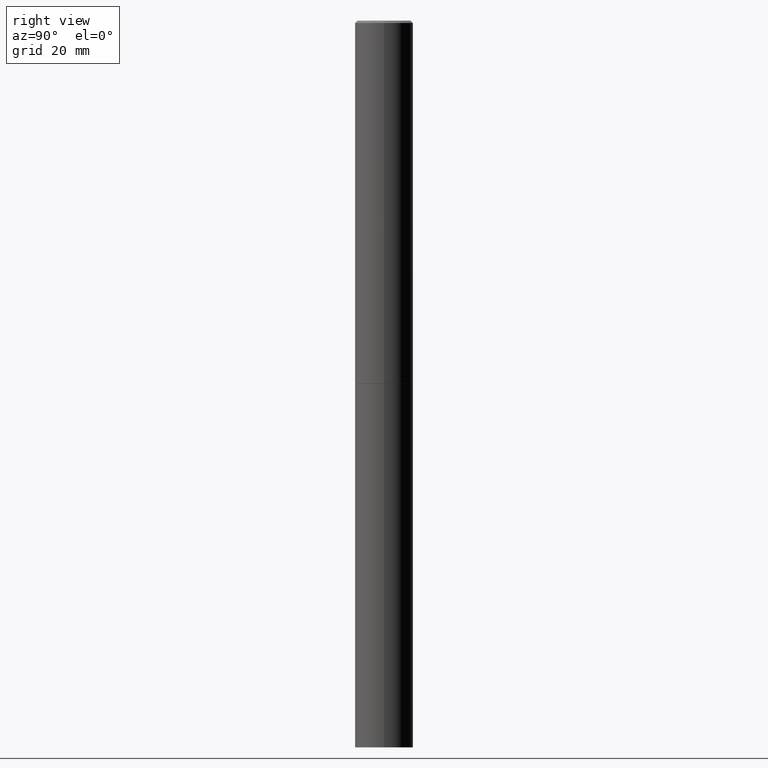
[diagram: clean part render]
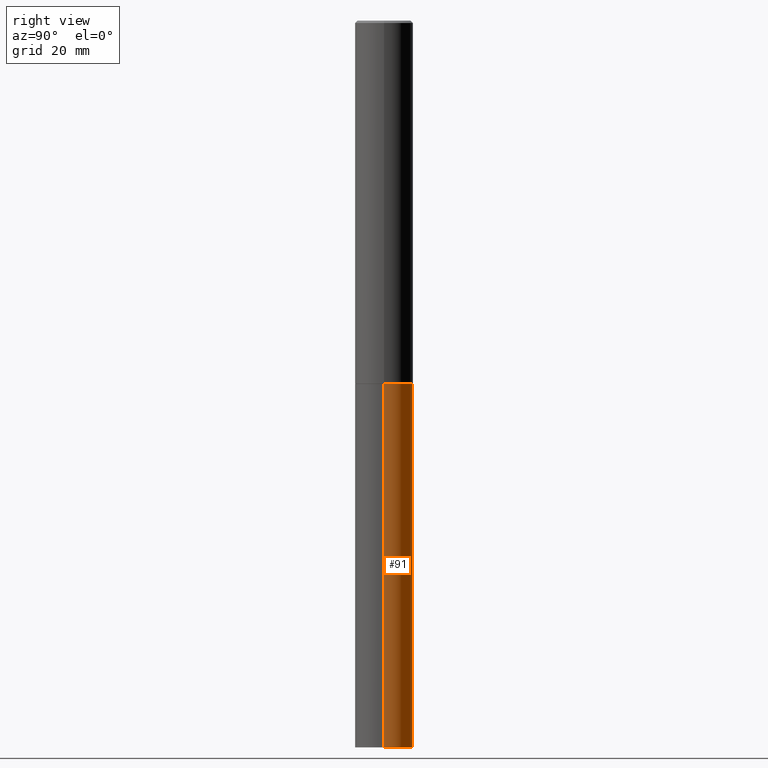
[diagram: same view with one face highlighted and labeled with its STEP entity id]
A machine part, right view. The second image highlights one B-rep face of the part: STEP entity #91.
In plain terms, the highlighted cylindrical surface (edge-blend (fillet) strip) has radius 5.9995 mm, axis along (-0, 0, 1).
Its self-contained STEP definition (entity closure, byte-faithful):
#1 = CARTESIAN_POINT ( 'NONE',  ( 1.444171603492632270E-28, -2.061894304653819197E-14, -5.905499999999999972 ) ) ;
#6 = LINE ( 'NONE', #58, #337 ) ;
#10 = CARTESIAN_POINT ( 'NONE',  ( -0.2361999999999999933, 1.678301941865356591E-15, -1.161852468318208757E-29 ) ) ;
#16 = ORIENTED_EDGE ( 'NONE', *, *, #360, .T. ) ;
#30 = CARTESIAN_POINT ( 'NONE',  ( 7.220735744022852519E-29, -1.030929694920215502E-14, -2.952700000000000102 ) ) ;
#43 = VERTEX_POINT ( 'NONE', #158 ) ;
#54 = AXIS2_PLACEMENT_3D ( 'NONE', #166, #273, #83 ) ;
#58 = CARTESIAN_POINT ( 'NONE',  ( 0.2361999999999999933, -1.649375784469496131E-15, 1.151752954443000088E-29 ) ) ;
#61 = CIRCLE ( 'NONE', #208, 0.2361999999999999933 ) ;
#66 = CARTESIAN_POINT ( 'NONE',  ( 0.2361999999999999933, -1.195867273367164996E-14, -2.952700000000000102 ) ) ;
#71 = EDGE_LOOP ( 'NONE', ( #190, #16, #213, #127 ) ) ;
#83 = DIRECTION ( 'NONE',  ( 1.000000000000000000, -6.982962677686266711E-15, 4.876176775795936353E-29 ) ) ;
#87 = EDGE_CURVE ( 'NONE', #270, #295, #61, .T. ) ;
#90 = DIRECTION ( 'NONE',  ( -2.445468806185136877E-29, 3.491481338843145188E-15, 1.000000000000000000 ) ) ;
#91 = ADVANCED_FACE ( 'NONE', ( #140 ), #363, .T. ) ;
#108 = VECTOR ( 'NONE', #90, 39.37007874015748143 ) ;
#112 = DIRECTION ( 'NONE',  ( 1.000000000000000000, -6.982962677686265133E-15, 0.000000000000000000 ) ) ;
#127 = ORIENTED_EDGE ( 'NONE', *, *, #143, .F. ) ;
#140 = FACE_OUTER_BOUND ( 'NONE', #71, .T. ) ;
#143 = EDGE_CURVE ( 'NONE', #270, #236, #6, .T. ) ;
#148 = EDGE_CURVE ( 'NONE', #236, #43, #221, .T. ) ;
#158 = CARTESIAN_POINT ( 'NONE',  ( -0.2361999999999999933, -1.378581805600481631E-14, -2.952700000000000102 ) ) ;
#166 = CARTESIAN_POINT ( 'NONE',  ( 0.000000000000000000, 0.000000000000000000, 0.000000000000000000 ) ) ;
#180 = CARTESIAN_POINT ( 'NONE',  ( -0.2361999999999999933, -1.378581805600481631E-14, -5.905499999999999972 ) ) ;
#190 = ORIENTED_EDGE ( 'NONE', *, *, #87, .T. ) ;
#208 = AXIS2_PLACEMENT_3D ( 'NONE', #1, #339, #277 ) ;
#213 = ORIENTED_EDGE ( 'NONE', *, *, #148, .F. ) ;
#221 = CIRCLE ( 'NONE', #319, 0.2361999999999999933 ) ;
#225 = DIRECTION ( 'NONE',  ( -2.445468806185136597E-29, 3.491481338843145583E-15, 1.000000000000000000 ) ) ;
#236 = VERTEX_POINT ( 'NONE', #66 ) ;
#270 = VERTEX_POINT ( 'NONE', #318 ) ;
#273 = DIRECTION ( 'NONE',  ( -2.445468806185136597E-29, 3.491481338843145583E-15, 1.000000000000000000 ) ) ;
#277 = DIRECTION ( 'NONE',  ( 1.000000000000000000, -6.982962677686273021E-15, 0.000000000000000000 ) ) ;
#295 = VERTEX_POINT ( 'NONE', #180 ) ;
#310 = DIRECTION ( 'NONE',  ( -2.445468806185136877E-29, 3.491481338843145188E-15, 1.000000000000000000 ) ) ;
#318 = CARTESIAN_POINT ( 'NONE',  ( 0.2361999999999999933, -2.226831883100769165E-14, -5.905499999999999972 ) ) ;
#319 = AXIS2_PLACEMENT_3D ( 'NONE', #30, #225, #112 ) ;
#320 = LINE ( 'NONE', #10, #108 ) ;
#337 = VECTOR ( 'NONE', #310, 39.37007874015748143 ) ;
#339 = DIRECTION ( 'NONE',  ( -2.445468806185136597E-29, 3.491481338843145583E-15, 1.000000000000000000 ) ) ;
#360 = EDGE_CURVE ( 'NONE', #295, #43, #320, .T. ) ;
#363 = CYLINDRICAL_SURFACE ( 'NONE', #54, 0.2361999999999999933 ) ;